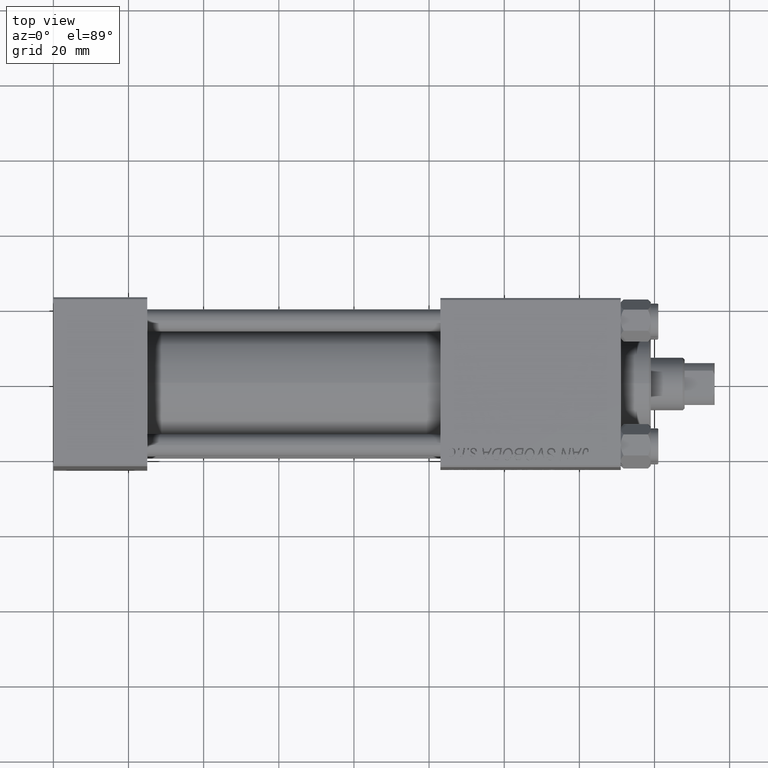
[diagram: clean part render]
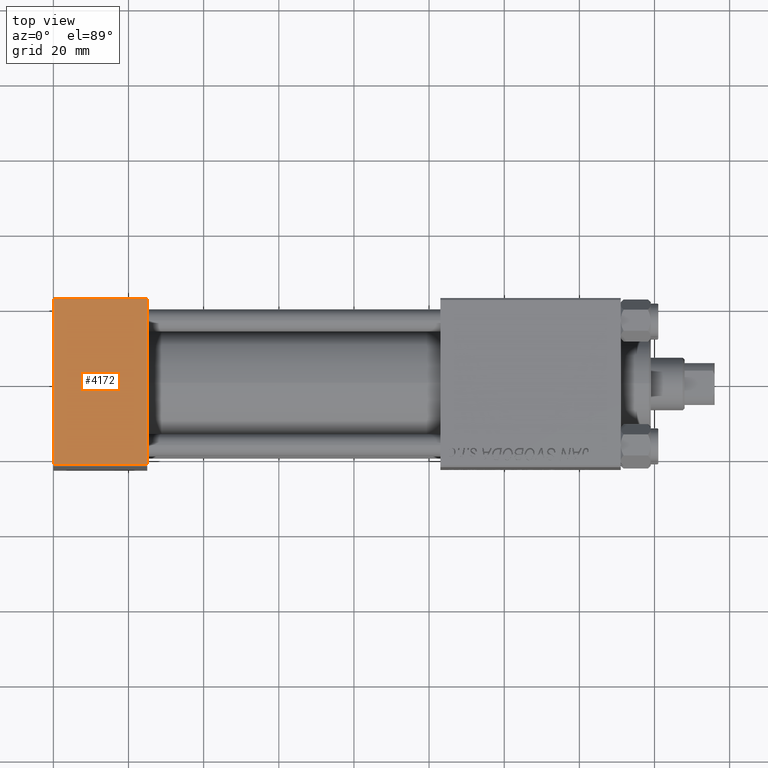
[diagram: same view with one face highlighted and labeled with its STEP entity id]
A machine part, top view. The second image highlights one B-rep face of the part: STEP entity #4172.
In plain terms, the highlighted planar face has unit normal (0, 0, -1).
Its self-contained STEP definition (entity closure, byte-faithful):
#11 = DIRECTION ( 'NONE',  ( 0.000000000000000000, 1.000000000000000000, 1.541976423090495387E-16 ) ) ;
#777 = VERTEX_POINT ( 'NONE', #37525 ) ;
#815 = CARTESIAN_POINT ( 'NONE',  ( 0.000000000000000000, 22.50000000000000355, 35.00000000000000711 ) ) ;
#1954 = EDGE_CURVE ( 'NONE', #32369, #777, #4469, .T. ) ;
#2129 = EDGE_CURVE ( 'NONE', #777, #9373, #31136, .T. ) ;
#2277 = CARTESIAN_POINT ( 'NONE',  ( 0.000000000000000000, -21.99999999999998934, 35.00000000000000000 ) ) ;
#4010 = EDGE_LOOP ( 'NONE', ( #49655, #13330, #4249, #27893 ) ) ;
#4172 = ADVANCED_FACE ( 'NONE', ( #14680 ), #34602, .F. ) ;
#4249 = ORIENTED_EDGE ( 'NONE', *, *, #33252, .F. ) ;
#4469 = LINE ( 'NONE', #20387, #30879 ) ;
#6636 = AXIS2_PLACEMENT_3D ( 'NONE', #22762, #18962, #11 ) ;
#9373 = VERTEX_POINT ( 'NONE', #2277 ) ;
#13330 = ORIENTED_EDGE ( 'NONE', *, *, #16712, .T. ) ;
#14680 = FACE_OUTER_BOUND ( 'NONE', #4010, .T. ) ;
#16712 = EDGE_CURVE ( 'NONE', #9373, #19994, #28822, .T. ) ;
#18962 = DIRECTION ( 'NONE',  ( 0.000000000000000000, 1.541976423090495387E-16, -1.000000000000000000 ) ) ;
#19994 = VERTEX_POINT ( 'NONE', #45634 ) ;
#20387 = CARTESIAN_POINT ( 'NONE',  ( 0.000000000000000000, 22.00000000000000355, 35.00000000000000711 ) ) ;
#22762 = CARTESIAN_POINT ( 'NONE',  ( 25.00000000000000000, 22.50000000000000355, 35.00000000000000711 ) ) ;
#24191 = CARTESIAN_POINT ( 'NONE',  ( 25.00000000000000000, 22.00000000000000355, 35.00000000000000711 ) ) ;
#25310 = CARTESIAN_POINT ( 'NONE',  ( 25.00000000000000000, -22.00000000000000355, 35.00000000000000000 ) ) ;
#27893 = ORIENTED_EDGE ( 'NONE', *, *, #1954, .T. ) ;
#28822 = LINE ( 'NONE', #25310, #34651 ) ;
#29528 = LINE ( 'NONE', #38109, #31075 ) ;
#30649 = DIRECTION ( 'NONE',  ( 0.000000000000000000, -1.000000000000000000, -1.541976423090495387E-16 ) ) ;
#30879 = VECTOR ( 'NONE', #35783, 1000.000000000000000 ) ;
#31075 = VECTOR ( 'NONE', #44951, 1000.000000000000000 ) ;
#31136 = LINE ( 'NONE', #815, #38163 ) ;
#32369 = VERTEX_POINT ( 'NONE', #24191 ) ;
#33252 = EDGE_CURVE ( 'NONE', #32369, #19994, #29528, .T. ) ;
#34602 = PLANE ( 'NONE',  #6636 ) ;
#34651 = VECTOR ( 'NONE', #48535, 1000.000000000000000 ) ;
#35783 = DIRECTION ( 'NONE',  ( -1.000000000000000000, 0.000000000000000000, 0.000000000000000000 ) ) ;
#37525 = CARTESIAN_POINT ( 'NONE',  ( 0.000000000000000000, 22.00000000000000355, 35.00000000000000711 ) ) ;
#38109 = CARTESIAN_POINT ( 'NONE',  ( 25.00000000000000000, 22.50000000000000355, 35.00000000000000711 ) ) ;
#38163 = VECTOR ( 'NONE', #30649, 1000.000000000000000 ) ;
#44951 = DIRECTION ( 'NONE',  ( 0.000000000000000000, -1.000000000000000000, -1.541976423090495387E-16 ) ) ;
#45634 = CARTESIAN_POINT ( 'NONE',  ( 25.00000000000000000, -21.99999999999998934, 35.00000000000000000 ) ) ;
#48535 = DIRECTION ( 'NONE',  ( 1.000000000000000000, 0.000000000000000000, 0.000000000000000000 ) ) ;
#49655 = ORIENTED_EDGE ( 'NONE', *, *, #2129, .T. ) ;